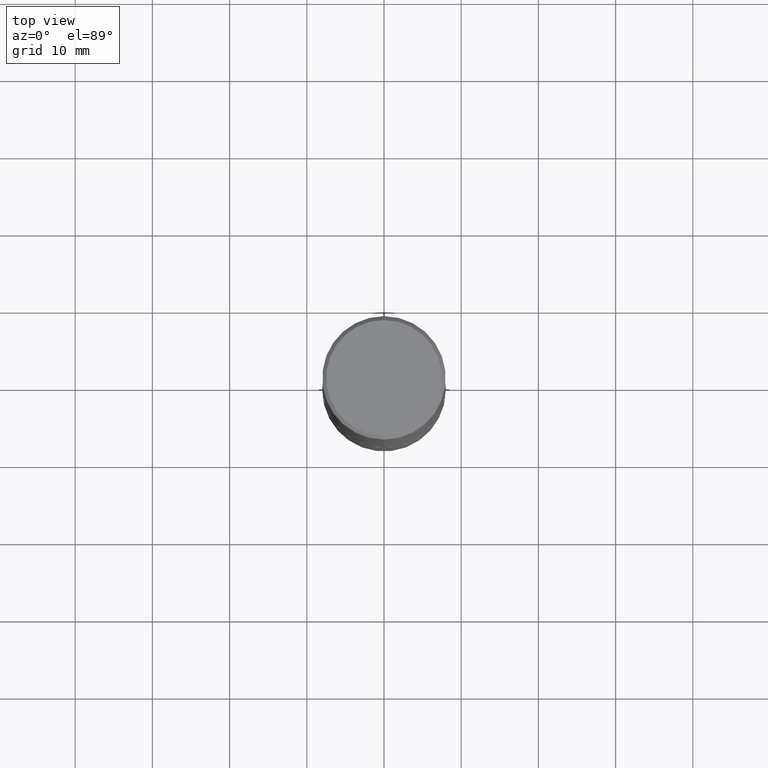
[diagram: clean part render]
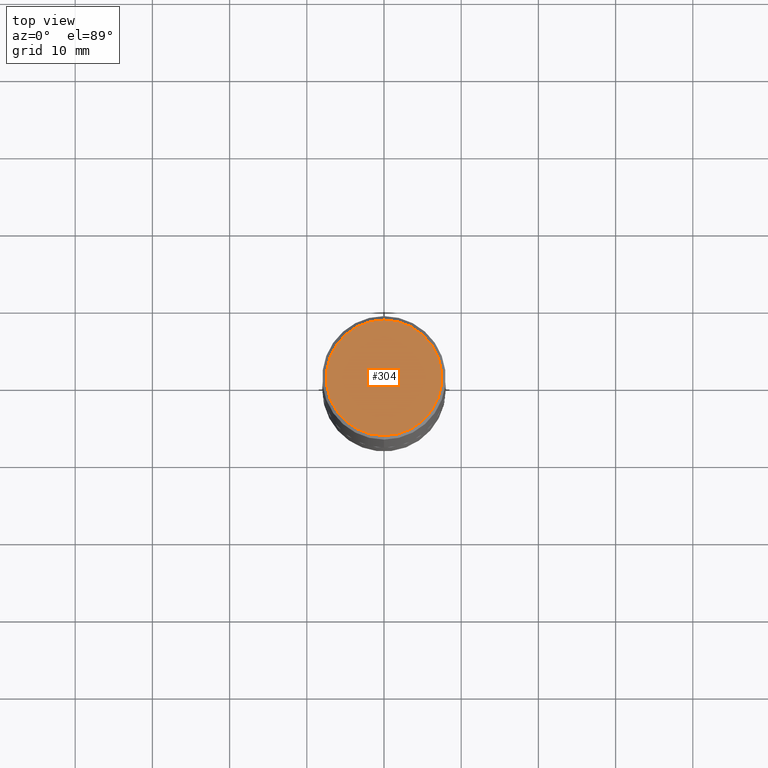
[diagram: same view with one face highlighted and labeled with its STEP entity id]
A machine part, top view. The second image highlights one B-rep face of the part: STEP entity #304.
In plain terms, the highlighted planar face has unit normal (0, -0, -1).
Its self-contained STEP definition (entity closure, byte-faithful):
#16 = AXIS2_PLACEMENT_3D ( 'NONE', #289, #230, #66 ) ;
#34 = CARTESIAN_POINT ( 'NONE',  ( 2.129454468560427756E-15, 0.2949500000000002120, -1.277386145317610329E-15 ) ) ;
#66 = DIRECTION ( 'NONE',  ( 6.982962677686265922E-15, 1.000000000000000000, -3.487521597279215608E-15 ) ) ;
#79 = DIRECTION ( 'NONE',  ( -2.448233878940557644E-29, 3.487521597279215214E-15, 1.000000000000000000 ) ) ;
#88 = ORIENTED_EDGE ( 'NONE', *, *, #418, .T. ) ;
#93 = EDGE_CURVE ( 'NONE', #248, #387, #300, .T. ) ;
#164 = DIRECTION ( 'NONE',  ( -2.448233878940557644E-29, 3.487521597279215214E-15, 1.000000000000000000 ) ) ;
#169 = CARTESIAN_POINT ( 'NONE',  ( 6.089777351234785307E-45, -8.674918772157382389E-31, -2.487416502001050444E-16 ) ) ;
#171 = PLANE ( 'NONE',  #16 ) ;
#191 = CARTESIAN_POINT ( 'NONE',  ( 6.089777351234785307E-45, -8.674918772157382389E-31, -2.487416502001050444E-16 ) ) ;
#209 = CARTESIAN_POINT ( 'NONE',  ( -2.092108864420429214E-15, -0.2949500000000002120, 7.799028449174000434E-16 ) ) ;
#214 = CIRCLE ( 'NONE', #407, 0.2949500000000002120 ) ;
#230 = DIRECTION ( 'NONE',  ( 2.448233878940556803E-29, -3.487521597279215608E-15, -1.000000000000000000 ) ) ;
#248 = VERTEX_POINT ( 'NONE', #209 ) ;
#252 = FACE_OUTER_BOUND ( 'NONE', #283, .T. ) ;
#283 = EDGE_LOOP ( 'NONE', ( #88, #348 ) ) ;
#289 = CARTESIAN_POINT ( 'NONE',  ( 2.059624841783565641E-15, 0.2949500000000002120, -1.153015320217557783E-15 ) ) ;
#300 = CIRCLE ( 'NONE', #313, 0.2949500000000002120 ) ;
#304 = ADVANCED_FACE ( 'NONE', ( #252 ), #171, .F. ) ;
#313 = AXIS2_PLACEMENT_3D ( 'NONE', #169, #79, #415 ) ;
#348 = ORIENTED_EDGE ( 'NONE', *, *, #93, .T. ) ;
#387 = VERTEX_POINT ( 'NONE', #34 ) ;
#407 = AXIS2_PLACEMENT_3D ( 'NONE', #191, #164, #416 ) ;
#415 = DIRECTION ( 'NONE',  ( -6.982962677686265922E-15, -1.000000000000000000, 3.487521597279215608E-15 ) ) ;
#416 = DIRECTION ( 'NONE',  ( -6.982962677686265922E-15, -1.000000000000000000, 3.487521597279215608E-15 ) ) ;
#418 = EDGE_CURVE ( 'NONE', #387, #248, #214, .T. ) ;